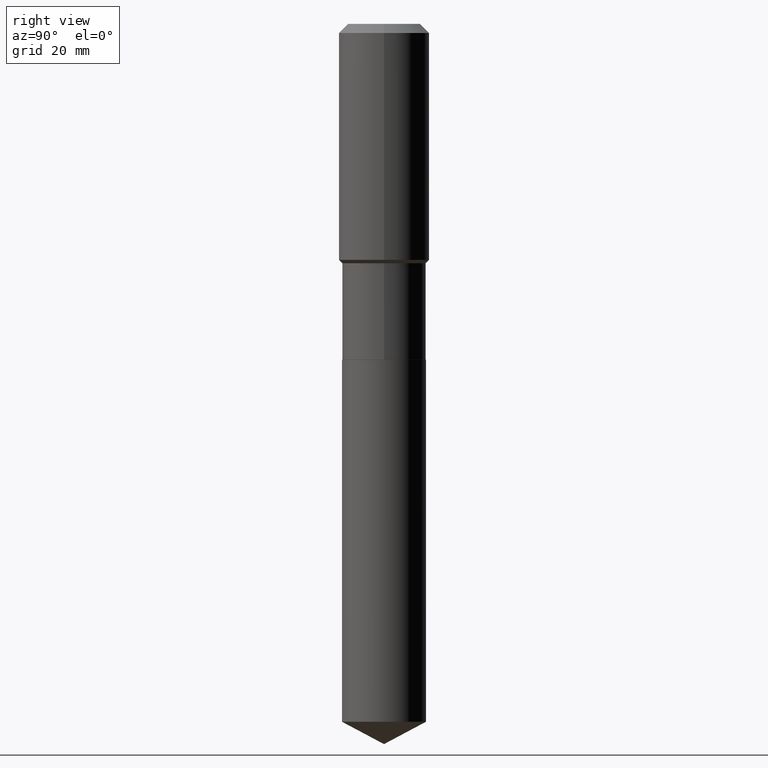
[diagram: clean part render]
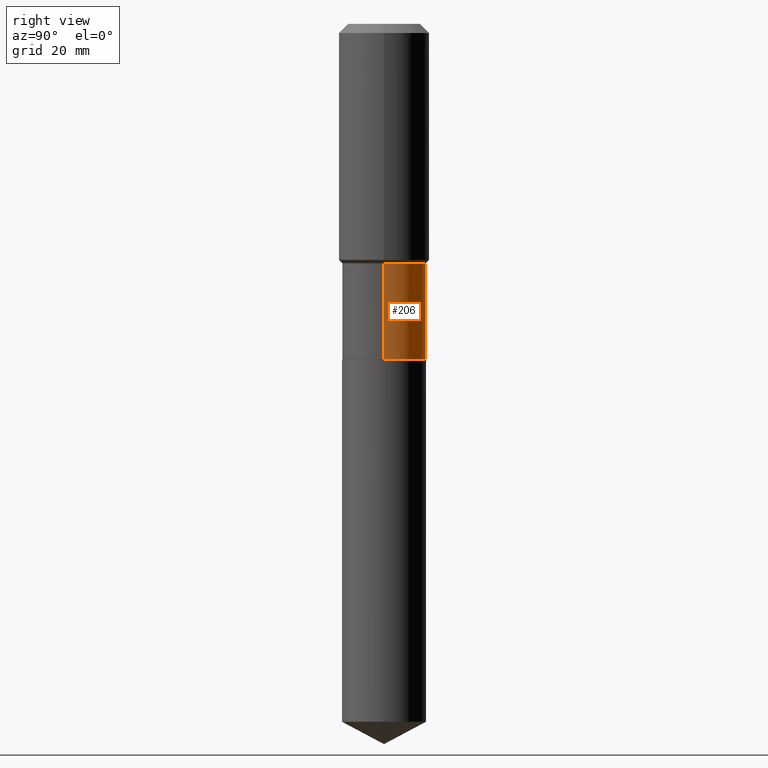
[diagram: same view with one face highlighted and labeled with its STEP entity id]
A machine part, right view. The second image highlights one B-rep face of the part: STEP entity #206.
In plain terms, the highlighted cylindrical surface (partial cylindrical patch) has radius 8.3337 mm, axis along (-0, 0, 1).
Its self-contained STEP definition (entity closure, byte-faithful):
#3 = CIRCLE ( 'NONE', #115, 0.3280999999999998917 ) ;
#7 = CYLINDRICAL_SURFACE ( 'NONE', #278, 0.3281000000000000028 ) ;
#34 = LINE ( 'NONE', #437, #140 ) ;
#39 = EDGE_CURVE ( 'NONE', #202, #85, #34, .T. ) ;
#41 = CARTESIAN_POINT ( 'NONE',  ( 0.000000000000000000, 0.000000000000000000, 0.000000000000000000 ) ) ;
#65 = CARTESIAN_POINT ( 'NONE',  ( -0.3280999999999998917, -5.516337315221906286E-15, -1.870600000000000041 ) ) ;
#78 = DIRECTION ( 'NONE',  ( -2.445468806185136597E-29, 3.491481338843145583E-15, 1.000000000000000000 ) ) ;
#81 = DIRECTION ( 'NONE',  ( -2.445468806185136597E-29, 3.491481338843145583E-15, 1.000000000000000000 ) ) ;
#84 = EDGE_LOOP ( 'NONE', ( #244, #467, #133, #345 ) ) ;
#85 = VERTEX_POINT ( 'NONE', #103 ) ;
#100 = LINE ( 'NONE', #397, #381 ) ;
#103 = CARTESIAN_POINT ( 'NONE',  ( 0.3280999999999998917, -8.822275046988852801E-15, -1.870600000000000041 ) ) ;
#114 = EDGE_CURVE ( 'NONE', #202, #174, #148, .T. ) ;
#115 = AXIS2_PLACEMENT_3D ( 'NONE', #458, #160, #122 ) ;
#122 = DIRECTION ( 'NONE',  ( 1.000000000000000000, -6.982962677686269077E-15, 0.000000000000000000 ) ) ;
#133 = ORIENTED_EDGE ( 'NONE', *, *, #180, .F. ) ;
#140 = VECTOR ( 'NONE', #398, 39.37007874015748143 ) ;
#148 = CIRCLE ( 'NONE', #470, 0.3281000000000000028 ) ;
#160 = DIRECTION ( 'NONE',  ( -2.445468806185136597E-29, 3.491481338843145583E-15, 1.000000000000000000 ) ) ;
#174 = VERTEX_POINT ( 'NONE', #342 ) ;
#179 = DIRECTION ( 'NONE',  ( -2.445468806185136877E-29, 3.491481338843145188E-15, 1.000000000000000000 ) ) ;
#180 = EDGE_CURVE ( 'NONE', #85, #318, #3, .T. ) ;
#202 = VERTEX_POINT ( 'NONE', #459 ) ;
#206 = ADVANCED_FACE ( 'NONE', ( #423 ), #7, .T. ) ;
#226 = CARTESIAN_POINT ( 'NONE',  ( 6.418621975594126092E-29, -9.164091070061601343E-15, -2.624699999999999367 ) ) ;
#233 = DIRECTION ( 'NONE',  ( 1.000000000000000000, -6.982962677686264344E-15, 0.000000000000000000 ) ) ;
#244 = ORIENTED_EDGE ( 'NONE', *, *, #114, .T. ) ;
#267 = DIRECTION ( 'NONE',  ( 1.000000000000000000, -6.982962677686266711E-15, 4.876176775795935232E-29 ) ) ;
#278 = AXIS2_PLACEMENT_3D ( 'NONE', #41, #81, #267 ) ;
#318 = VERTEX_POINT ( 'NONE', #65 ) ;
#342 = CARTESIAN_POINT ( 'NONE',  ( -0.3281000000000000028, -5.516337315221906286E-15, -2.624699999999999367 ) ) ;
#345 = ORIENTED_EDGE ( 'NONE', *, *, #39, .F. ) ;
#381 = VECTOR ( 'NONE', #179, 39.37007874015748143 ) ;
#397 = CARTESIAN_POINT ( 'NONE',  ( -0.3281000000000000028, 2.331290716028888729E-15, -1.613902603112634433E-29 ) ) ;
#398 = DIRECTION ( 'NONE',  ( -2.445468806185136877E-29, 3.491481338843145188E-15, 1.000000000000000000 ) ) ;
#423 = FACE_OUTER_BOUND ( 'NONE', #84, .T. ) ;
#437 = CARTESIAN_POINT ( 'NONE',  ( 0.3281000000000000028, -2.291110054548864114E-15, 1.599873600138646308E-29 ) ) ;
#453 = EDGE_CURVE ( 'NONE', #174, #318, #100, .T. ) ;
#458 = CARTESIAN_POINT ( 'NONE',  ( 4.574493948849916372E-29, -6.531164992439988687E-15, -1.870600000000000041 ) ) ;
#459 = CARTESIAN_POINT ( 'NONE',  ( 0.3281000000000000028, -1.145520112461046467E-14, -2.624699999999999367 ) ) ;
#467 = ORIENTED_EDGE ( 'NONE', *, *, #453, .T. ) ;
#470 = AXIS2_PLACEMENT_3D ( 'NONE', #226, #78, #233 ) ;